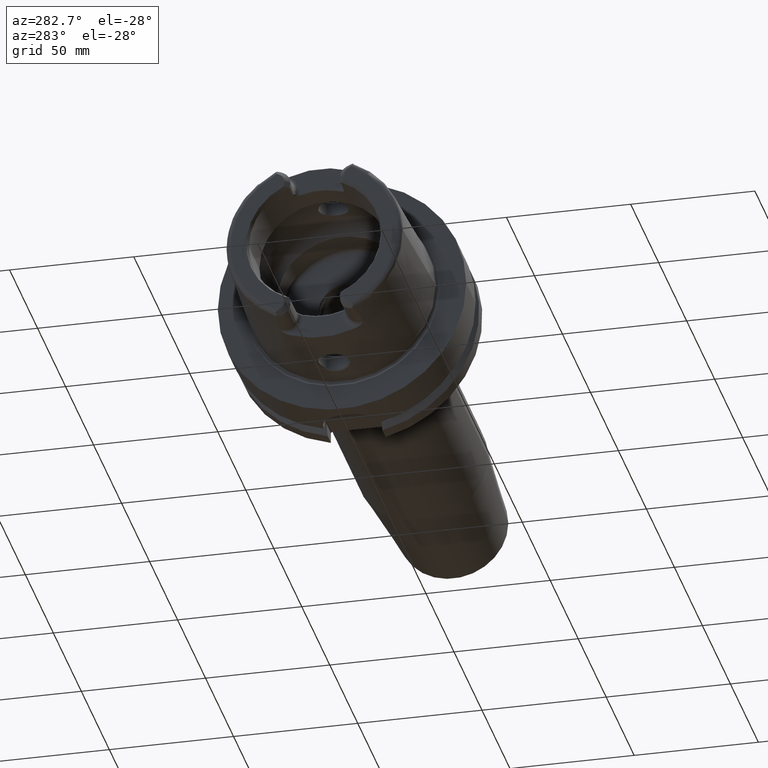
[diagram: clean part render]
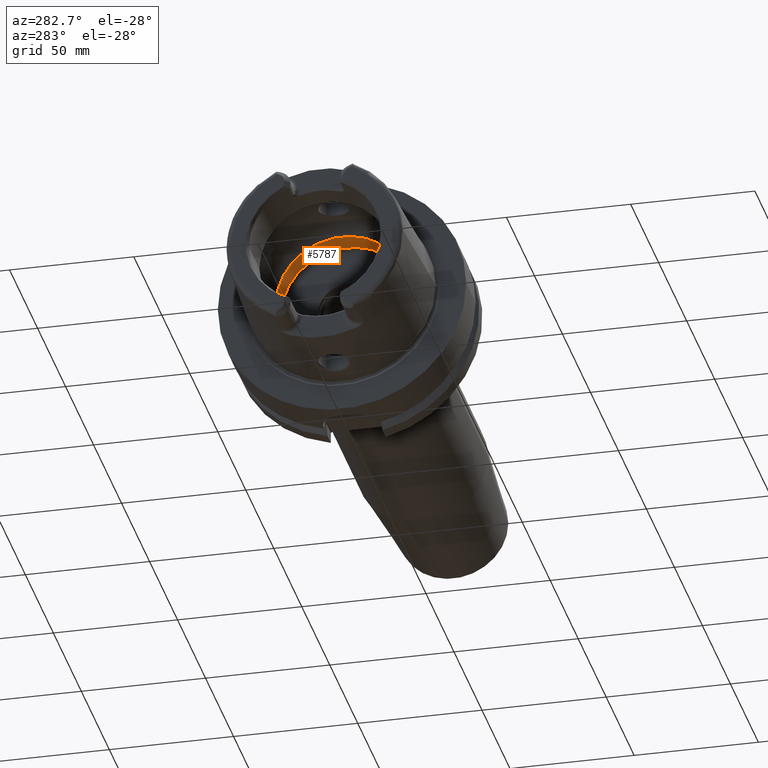
[diagram: same view with one face highlighted and labeled with its STEP entity id]
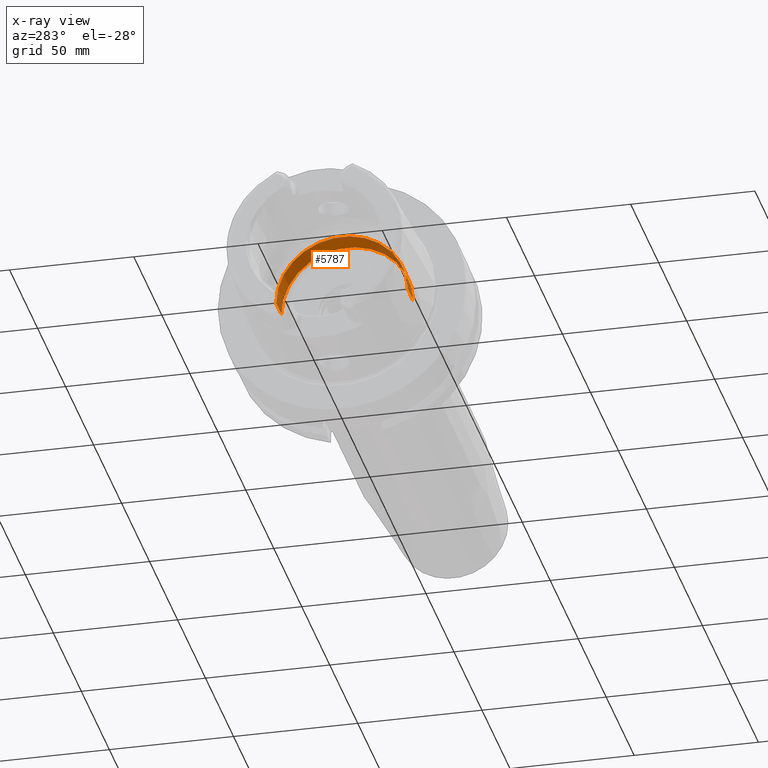
[diagram: x-ray of the same camera — body ghosted, the highlighted face saturated]
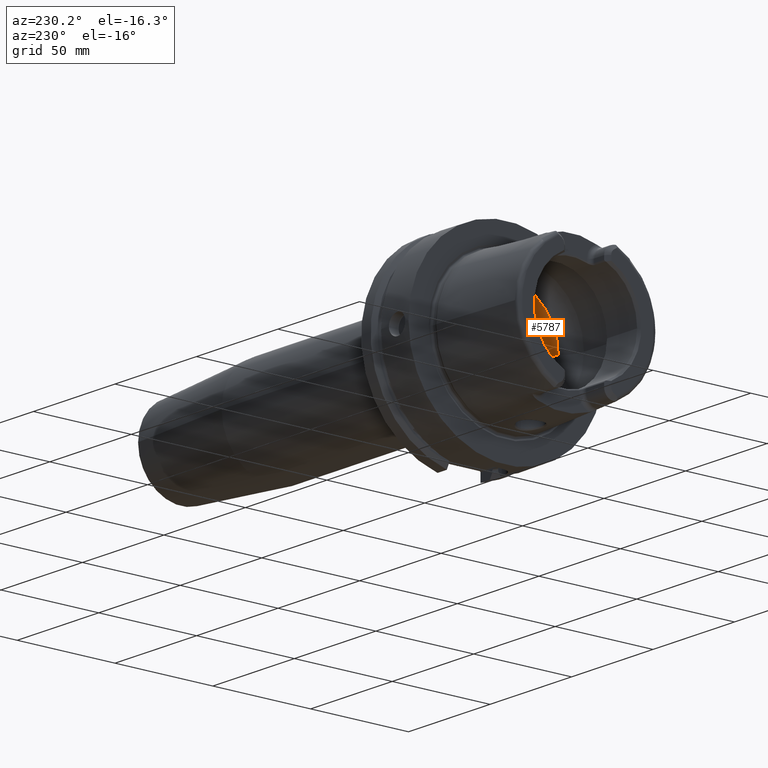
[diagram: same view with one face highlighted and labeled with its STEP entity id]
A machine part, auxiliary view. The second image highlights one B-rep face of the part: STEP entity #5787.
The next image is the same camera in x-ray: the body ghosted, the highlighted face saturated — about 19% of this face is hidden behind the body in this view.
A second angle (auxiliary view) of the same face is appended — the face is thin or edge-on in the first view.
In plain terms, the highlighted cylindrical surface (partial cylindrical patch) has radius 26.5 mm, axis along (1, 0, 0).
Its self-contained STEP definition (entity closure, byte-faithful):
#2080=CARTESIAN_POINT('',(-1.E-1,0.E0,0.E0));
#2081=DIRECTION('',(1.E0,0.E0,0.E0));
#2082=DIRECTION('',(0.E0,1.E0,0.E0));
#2083=AXIS2_PLACEMENT_3D('',#2080,#2081,#2082);
#2242=DIRECTION('',(-1.E0,0.E0,0.E0));
#2243=VECTOR('',#2242,9.4E0);
#2244=CARTESIAN_POINT('',(9.3E0,2.65E1,0.E0));
#2245=LINE('',#2244,#2243);
#2251=DIRECTION('',(-1.E0,0.E0,0.E0));
#2252=VECTOR('',#2251,9.4E0);
#2253=CARTESIAN_POINT('',(9.3E0,-2.65E1,0.E0));
#2254=LINE('',#2253,#2252);
#2255=CARTESIAN_POINT('',(9.3E0,0.E0,0.E0));
#2256=DIRECTION('',(1.E0,0.E0,0.E0));
#2257=DIRECTION('',(0.E0,1.E0,0.E0));
#2258=AXIS2_PLACEMENT_3D('',#2255,#2256,#2257);
#2726=CARTESIAN_POINT('',(9.3E0,2.65E1,0.E0));
#2728=VERTEX_POINT('',#2726);
#2730=CARTESIAN_POINT('',(9.3E0,-2.65E1,0.E0));
#2732=VERTEX_POINT('',#2730);
#2733=CARTESIAN_POINT('',(-1.E-1,2.65E1,0.E0));
#2734=VERTEX_POINT('',#2733);
#2745=CARTESIAN_POINT('',(-1.E-1,-2.65E1,0.E0));
#2746=VERTEX_POINT('',#2745);
#5775=CARTESIAN_POINT('',(-5.3125E1,0.E0,0.E0));
#5776=DIRECTION('',(1.E0,0.E0,0.E0));
#5777=DIRECTION('',(0.E0,-1.E0,0.E0));
#5778=AXIS2_PLACEMENT_3D('',#5775,#5776,#5777);
#5779=CYLINDRICAL_SURFACE('',#5778,2.65E1);
#5780=ORIENTED_EDGE('',*,*,#5765,.T.);
#5781=ORIENTED_EDGE('',*,*,#5699,.T.);
#5782=ORIENTED_EDGE('',*,*,#5769,.F.);
#5784=ORIENTED_EDGE('',*,*,#5783,.F.);
#5785=EDGE_LOOP('',(#5780,#5781,#5782,#5784));
#5786=FACE_OUTER_BOUND('',#5785,.F.);
#5787=ADVANCED_FACE('',(#5786),#5779,.F.);
#2084=CIRCLE('',#2083,2.65E1);
#2259=CIRCLE('',#2258,2.65E1);
#5699=EDGE_CURVE('',#2734,#2746,#2084,.T.);
#5765=EDGE_CURVE('',#2728,#2734,#2245,.T.);
#5769=EDGE_CURVE('',#2732,#2746,#2254,.T.);
#5783=EDGE_CURVE('',#2728,#2732,#2259,.T.);